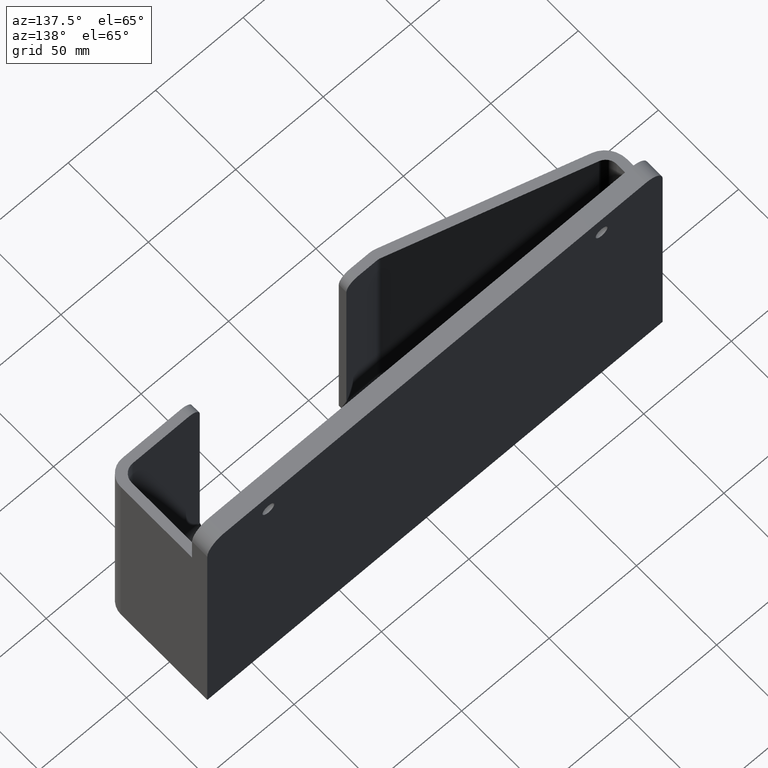
[diagram: clean part render]
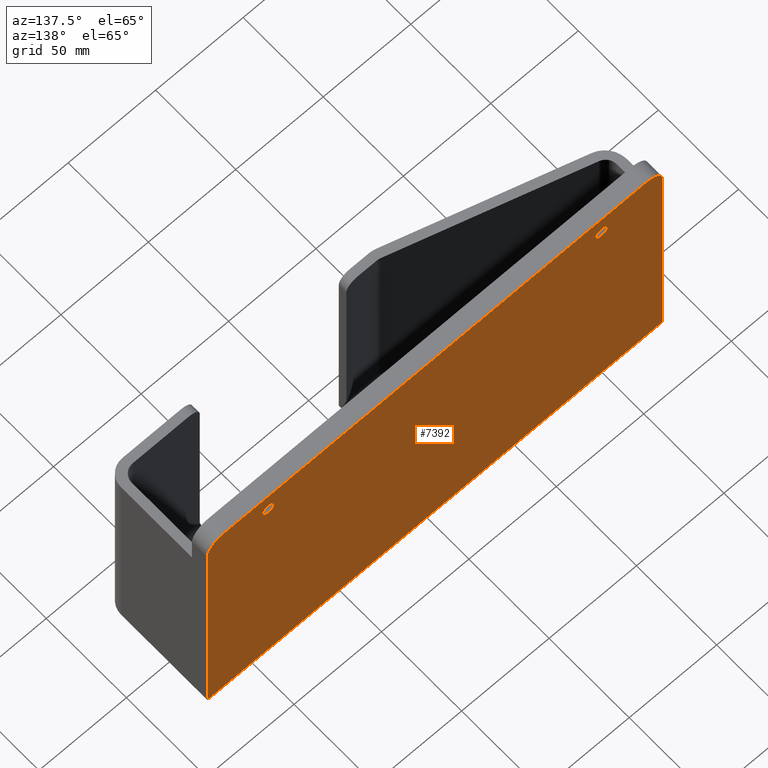
[diagram: same view with one face highlighted and labeled with its STEP entity id]
A machine part, auxiliary view. The second image highlights one B-rep face of the part: STEP entity #7392.
In plain terms, the highlighted planar face has unit normal (0, -1, 0).
Its self-contained STEP definition (entity closure, byte-faithful):
#526 = LINE ( 'NONE', #4808, #3248 ) ;
#640 = EDGE_LOOP ( 'NONE', ( #1127, #1126 ) ) ;
#1118 = ORIENTED_EDGE ( 'NONE', *, *, #8138, .T. ) ;
#1119 = ORIENTED_EDGE ( 'NONE', *, *, #8163, .T. ) ;
#1120 = ORIENTED_EDGE ( 'NONE', *, *, #8162, .T. ) ;
#1121 = ORIENTED_EDGE ( 'NONE', *, *, #5262, .F. ) ;
#1122 = ORIENTED_EDGE ( 'NONE', *, *, #8160, .T. ) ;
#1123 = ORIENTED_EDGE ( 'NONE', *, *, #8139, .F. ) ;
#1124 = ORIENTED_EDGE ( 'NONE', *, *, #5283, .T. ) ;
#1125 = ORIENTED_EDGE ( 'NONE', *, *, #8135, .T. ) ;
#1126 = ORIENTED_EDGE ( 'NONE', *, *, #5270, .T. ) ;
#1127 = ORIENTED_EDGE ( 'NONE', *, *, #8154, .T. ) ;
#1240 = VERTEX_POINT ( 'NONE', #4576 ) ;
#1305 = VERTEX_POINT ( 'NONE', #4505 ) ;
#1340 = VERTEX_POINT ( 'NONE', #4463 ) ;
#1366 = VERTEX_POINT ( 'NONE', #4435 ) ;
#1377 = VERTEX_POINT ( 'NONE', #4424 ) ;
#1381 = VERTEX_POINT ( 'NONE', #4419 ) ;
#1434 = AXIS2_PLACEMENT_3D ( 'NONE', #4899, #4898, #4897 ) ;
#1441 = AXIS2_PLACEMENT_3D ( 'NONE', #4871, #4869, #4868 ) ;
#1545 = AXIS2_PLACEMENT_3D ( 'NONE', #2455, #2408, #2469 ) ;
#1688 = DIRECTION ( 'NONE',  ( -0.0000000000000000000, -0.0000000000000000000, -1.000000000000000000 ) ) ;
#1719 = DIRECTION ( 'NONE',  ( 1.000000000000000000, 0.0000000000000000000, 0.0000000000000000000 ) ) ;
#1757 = DIRECTION ( 'NONE',  ( 0.0000000000000000000, 0.0000000000000000000, -1.000000000000000000 ) ) ;
#1783 = DIRECTION ( 'NONE',  ( -1.199347899657481900E-016, 1.000000000000000000, -0.0000000000000000000 ) ) ;
#1789 = CARTESIAN_POINT ( 'NONE',  ( -3.874999999999999600, 1.000000000000000900, 5.499999999999999100 ) ) ;
#1790 = CARTESIAN_POINT ( 'NONE',  ( -4.874999999999999100, 0.9999999999999994400, 5.625000000000000000 ) ) ;
#1805 = CARTESIAN_POINT ( 'NONE',  ( 4.625000000000000000, 1.000000000000000400, 5.625000000000000000 ) ) ;
#2015 = CARTESIAN_POINT ( 'NONE',  ( 5.000000000000000000, 1.000000000000000700, 6.000000000000000900 ) ) ;
#2017 = DIRECTION ( 'NONE',  ( 1.000000000000000000, 0.0000000000000000000, 0.0000000000000000000 ) ) ;
#2018 = DIRECTION ( 'NONE',  ( -0.0000000000000000000, -0.0000000000000000000, -1.000000000000000000 ) ) ;
#2061 = DIRECTION ( 'NONE',  ( -0.0000000000000000000, -1.000000000000000000, -0.0000000000000000000 ) ) ;
#2093 = DIRECTION ( 'NONE',  ( -1.000000000000000000, -1.199347899657481600E-016, 0.0000000000000000000 ) ) ;
#2108 = DIRECTION ( 'NONE',  ( -1.199347899657481900E-016, 1.000000000000000000, -0.0000000000000000000 ) ) ;
#2144 = DIRECTION ( 'NONE',  ( 0.0000000000000000000, 0.0000000000000000000, -1.000000000000000000 ) ) ;
#2149 = CARTESIAN_POINT ( 'NONE',  ( 5.000000000000000000, 1.000000000000000700, 0.0000000000000000000 ) ) ;
#2193 = DIRECTION ( 'NONE',  ( -0.0000000000000000000, -1.000000000000000000, -0.0000000000000000000 ) ) ;
#2198 = CARTESIAN_POINT ( 'NONE',  ( -5.249999999999999100, 0.9999999999999994400, 6.000000000000000900 ) ) ;
#2203 = CARTESIAN_POINT ( 'NONE',  ( 3.625000000000000900, 1.000000000000001800, 5.499999999999999100 ) ) ;
#2408 = DIRECTION ( 'NONE',  ( 1.199347899657481900E-016, -1.000000000000000000, 0.0000000000000000000 ) ) ;
#2455 = CARTESIAN_POINT ( 'NONE',  ( 5.000000000000000000, 1.000000000000000700, 6.000000000000000900 ) ) ;
#2468 = PLANE ( 'NONE',  #1545 ) ;
#2469 = DIRECTION ( 'NONE',  ( 1.000000000000000000, 1.199347899657481900E-016, 0.0000000000000000000 ) ) ;
#3248 = VECTOR ( 'NONE', #4802, 39.37007874015748100 ) ;
#3267 = CIRCLE ( 'NONE', #1434, 0.1329999999999999200 ) ;
#3290 = CIRCLE ( 'NONE', #1441, 0.1329999999999999200 ) ;
#3913 = FACE_BOUND ( 'NONE', #640, .T. ) ;
#3914 = FACE_BOUND ( 'NONE', #5128, .T. ) ;
#3916 = FACE_OUTER_BOUND ( 'NONE', #4034, .T. ) ;
#4034 = EDGE_LOOP ( 'NONE', ( #1123, #1122, #1121, #1120, #1119, #1118 ) ) ;
#4307 = CARTESIAN_POINT ( 'NONE',  ( -5.249999999999999100, 0.9999999999999994400, 0.0000000000000000000 ) ) ;
#4419 = CARTESIAN_POINT ( 'NONE',  ( 4.625000000000000000, 1.000000000000000700, 6.000000000000000900 ) ) ;
#4423 = VERTEX_POINT ( 'NONE', #4307 ) ;
#4424 = CARTESIAN_POINT ( 'NONE',  ( 5.000000000000000000, 1.000000000000000700, 0.0000000000000000000 ) ) ;
#4435 = CARTESIAN_POINT ( 'NONE',  ( -4.874999999999999100, 0.9999999999999994400, 6.000000000000000900 ) ) ;
#4463 = CARTESIAN_POINT ( 'NONE',  ( 5.000000000000000000, 1.000000000000000700, 5.625000000000000000 ) ) ;
#4503 = VERTEX_POINT ( 'NONE', #8039 ) ;
#4505 = CARTESIAN_POINT ( 'NONE',  ( -3.874999999999999600, 1.000000000000000900, 5.632999999999998200 ) ) ;
#4538 = VERTEX_POINT ( 'NONE', #8018 ) ;
#4576 = CARTESIAN_POINT ( 'NONE',  ( 3.625000000000000900, 1.000000000000001800, 5.632999999999998200 ) ) ;
#4647 = VERTEX_POINT ( 'NONE', #8050 ) ;
#4802 = DIRECTION ( 'NONE',  ( -1.000000000000000000, -1.199347899657481600E-016, 0.0000000000000000000 ) ) ;
#4808 = CARTESIAN_POINT ( 'NONE',  ( 5.000000000000000000, 1.000000000000000700, 6.000000000000000900 ) ) ;
#4868 = DIRECTION ( 'NONE',  ( 0.0000000000000000000, 0.0000000000000000000, -1.000000000000000000 ) ) ;
#4869 = DIRECTION ( 'NONE',  ( -0.0000000000000000000, -1.000000000000000000, -0.0000000000000000000 ) ) ;
#4871 = CARTESIAN_POINT ( 'NONE',  ( 3.625000000000000900, 1.000000000000001800, 5.499999999999999100 ) ) ;
#4897 = DIRECTION ( 'NONE',  ( 0.0000000000000000000, 0.0000000000000000000, -1.000000000000000000 ) ) ;
#4898 = DIRECTION ( 'NONE',  ( -0.0000000000000000000, -1.000000000000000000, -0.0000000000000000000 ) ) ;
#4899 = CARTESIAN_POINT ( 'NONE',  ( -3.874999999999999600, 1.000000000000000900, 5.499999999999999100 ) ) ;
#4947 = AXIS2_PLACEMENT_3D ( 'NONE', #2203, #2193, #2144 ) ;
#4954 = AXIS2_PLACEMENT_3D ( 'NONE', #1789, #2061, #1757 ) ;
#4956 = AXIS2_PLACEMENT_3D ( 'NONE', #1790, #1783, #1719 ) ;
#4958 = AXIS2_PLACEMENT_3D ( 'NONE', #1805, #2108, #2017 ) ;
#5128 = EDGE_LOOP ( 'NONE', ( #1125, #1124 ) ) ;
#5262 = EDGE_CURVE ( 'NONE', #1381, #1366, #526, .T. ) ;
#5270 = EDGE_CURVE ( 'NONE', #1305, #4538, #3267, .T. ) ;
#5283 = EDGE_CURVE ( 'NONE', #1240, #4647, #3290, .T. ) ;
#7392 = ADVANCED_FACE ( 'NONE', ( #3913, #3914, #3916 ), #2468, .F. ) ;
#7500 = CIRCLE ( 'NONE', #4947, 0.1329999999999999200 ) ;
#7501 = LINE ( 'NONE', #2198, #7505 ) ;
#7503 = LINE ( 'NONE', #2149, #7504 ) ;
#7504 = VECTOR ( 'NONE', #2093, 39.37007874015748100 ) ;
#7505 = VECTOR ( 'NONE', #1688, 39.37007874015748100 ) ;
#7533 = CIRCLE ( 'NONE', #4954, 0.1329999999999999200 ) ;
#7536 = LINE ( 'NONE', #2015, #7541 ) ;
#7541 = VECTOR ( 'NONE', #2018, 39.37007874015748100 ) ;
#7542 = CIRCLE ( 'NONE', #4956, 0.3750000000000002200 ) ;
#7545 = CIRCLE ( 'NONE', #4958, 0.3750000000000002200 ) ;
#8018 = CARTESIAN_POINT ( 'NONE',  ( -3.874999999999999600, 1.000000000000000900, 5.366999999999999100 ) ) ;
#8039 = CARTESIAN_POINT ( 'NONE',  ( -5.249999999999999100, 0.9999999999999994400, 5.625000000000000000 ) ) ;
#8050 = CARTESIAN_POINT ( 'NONE',  ( 3.625000000000000900, 1.000000000000001800, 5.366999999999999100 ) ) ;
#8135 = EDGE_CURVE ( 'NONE', #4647, #1240, #7500, .T. ) ;
#8138 = EDGE_CURVE ( 'NONE', #1377, #4423, #7503, .T. ) ;
#8139 = EDGE_CURVE ( 'NONE', #4503, #4423, #7501, .T. ) ;
#8154 = EDGE_CURVE ( 'NONE', #4538, #1305, #7533, .T. ) ;
#8160 = EDGE_CURVE ( 'NONE', #4503, #1366, #7542, .T. ) ;
#8162 = EDGE_CURVE ( 'NONE', #1381, #1340, #7545, .T. ) ;
#8163 = EDGE_CURVE ( 'NONE', #1340, #1377, #7536, .T. ) ;